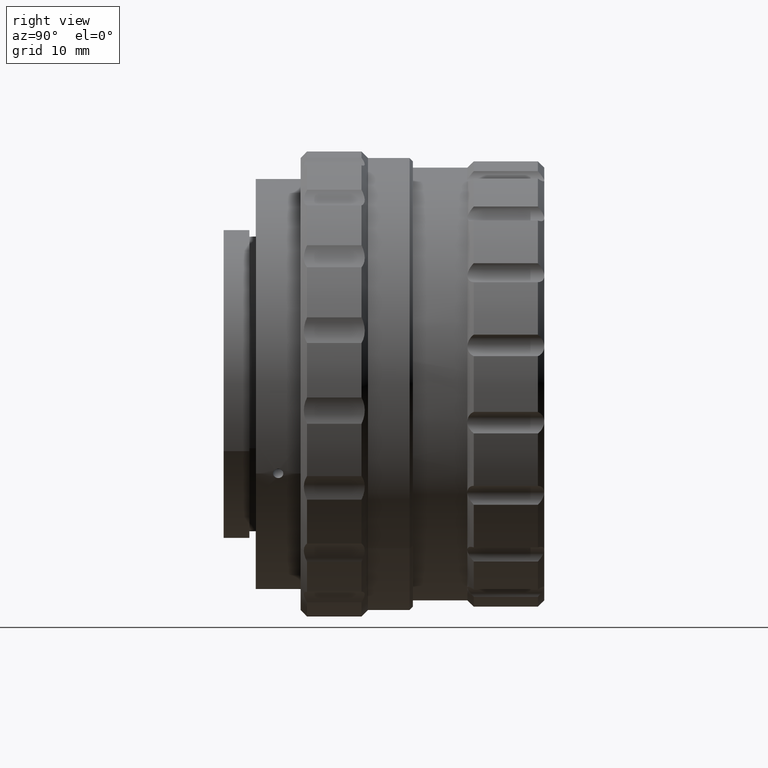
[diagram: clean part render]
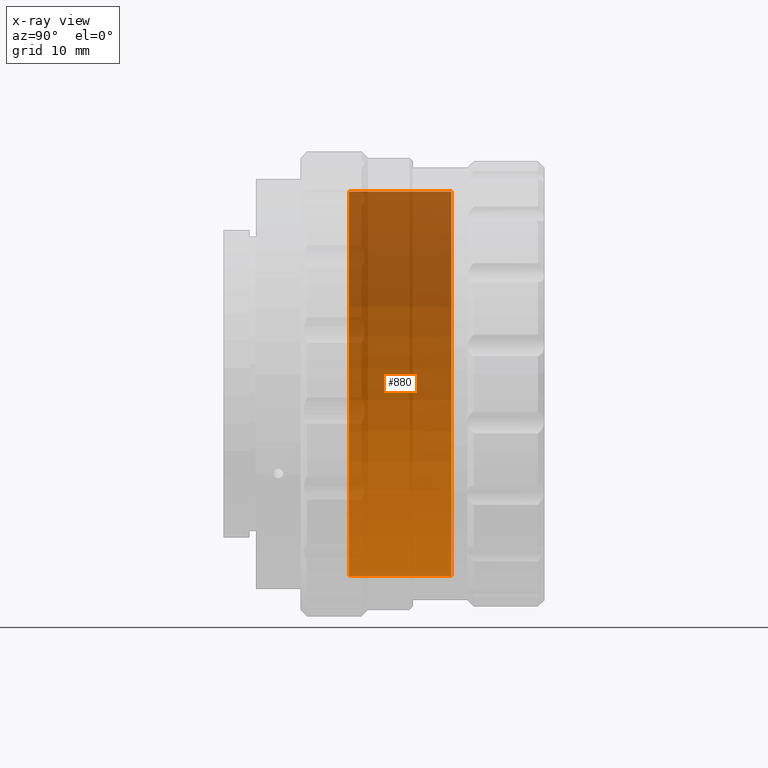
[diagram: x-ray — body ghosted, one internal face saturated and labeled with its STEP entity id]
A machine part, right view, then the same camera in x-ray: the body is ghosted and one INTERNAL B-rep face — a face not visible from any outside direction — is saturated and labeled: STEP entity #880.
In plain terms, the highlighted cylindrical surface (partial cylindrical patch) has radius 30 mm, axis along (-0, -1, -0).
Its self-contained STEP definition (entity closure, byte-faithful):
#526 = EDGE_CURVE ( 'NONE', #5051, #1820, #8237, .T. ) ;
#559 = VERTEX_POINT ( 'NONE', #1416 ) ;
#592 = VECTOR ( 'NONE', #3471, 1000.000000000000000 ) ;
#783 = CARTESIAN_POINT ( 'NONE',  ( 5.971701014312827738, -15.54875568700541955, 14.90330644533106863 ) ) ;
#870 = CARTESIAN_POINT ( 'NONE',  ( 5.971701014312827738, -15.54875568700541955, 44.90330644533106863 ) ) ;
#880 = ADVANCED_FACE ( 'NONE', ( #9099 ), #7655, .T. ) ;
#1081 = DIRECTION ( 'NONE',  ( -0.000000000000000000, -1.000000000000000000, -0.000000000000000000 ) ) ;
#1416 = CARTESIAN_POINT ( 'NONE',  ( 5.971701014312827738, 0.4512443129945815645, 14.90330644533106508 ) ) ;
#1802 = DIRECTION ( 'NONE',  ( -0.000000000000000000, -1.000000000000000000, -0.000000000000000000 ) ) ;
#1820 = VERTEX_POINT ( 'NONE', #7996 ) ;
#2336 = ORIENTED_EDGE ( 'NONE', *, *, #9692, .T. ) ;
#2932 = CARTESIAN_POINT ( 'NONE',  ( 5.971701014312831290, 0.4512443129945815645, 74.90330644533108284 ) ) ;
#3192 = ORIENTED_EDGE ( 'NONE', *, *, #526, .F. ) ;
#3471 = DIRECTION ( 'NONE',  ( -0.000000000000000000, -1.000000000000000000, -0.000000000000000000 ) ) ;
#3489 = CARTESIAN_POINT ( 'NONE',  ( 5.971701014312827738, -20.54875568700542132, 44.90330644533106863 ) ) ;
#3872 = LINE ( 'NONE', #7138, #4066 ) ;
#4024 = DIRECTION ( 'NONE',  ( -0.000000000000000000, -1.000000000000000000, -0.000000000000000000 ) ) ;
#4066 = VECTOR ( 'NONE', #10400, 1000.000000000000000 ) ;
#4140 = DIRECTION ( 'NONE',  ( 0.000000000000000000, 0.000000000000000000, -1.000000000000000000 ) ) ;
#4464 = CIRCLE ( 'NONE', #8406, 30.00000000000000000 ) ;
#4891 = DIRECTION ( 'NONE',  ( 0.000000000000000000, 0.000000000000000000, -1.000000000000000000 ) ) ;
#5044 = EDGE_LOOP ( 'NONE', ( #3192, #9457, #2336, #5744 ) ) ;
#5051 = VERTEX_POINT ( 'NONE', #2932 ) ;
#5144 = DIRECTION ( 'NONE',  ( 0.000000000000000000, 0.000000000000000000, -1.000000000000000000 ) ) ;
#5145 = CIRCLE ( 'NONE', #6684, 30.00000000000000355 ) ;
#5744 = ORIENTED_EDGE ( 'NONE', *, *, #10209, .F. ) ;
#5816 = CARTESIAN_POINT ( 'NONE',  ( 5.971701014312831290, -20.54875568700542132, 74.90330644533106863 ) ) ;
#6684 = AXIS2_PLACEMENT_3D ( 'NONE', #8104, #1802, #4891 ) ;
#7138 = CARTESIAN_POINT ( 'NONE',  ( 5.971701014312827738, -20.54875568700542132, 14.90330644533106863 ) ) ;
#7357 = VERTEX_POINT ( 'NONE', #783 ) ;
#7655 = CYLINDRICAL_SURFACE ( 'NONE', #10255, 30.00000000000000000 ) ;
#7996 = CARTESIAN_POINT ( 'NONE',  ( 5.971701014312831290, -15.54875568700541955, 74.90330644533106863 ) ) ;
#8104 = CARTESIAN_POINT ( 'NONE',  ( 5.971701014312827738, 0.4512443129945815645, 44.90330644533106863 ) ) ;
#8237 = LINE ( 'NONE', #5816, #592 ) ;
#8406 = AXIS2_PLACEMENT_3D ( 'NONE', #870, #4024, #4140 ) ;
#9099 = FACE_OUTER_BOUND ( 'NONE', #5044, .T. ) ;
#9457 = ORIENTED_EDGE ( 'NONE', *, *, #9766, .T. ) ;
#9692 = EDGE_CURVE ( 'NONE', #559, #7357, #3872, .T. ) ;
#9766 = EDGE_CURVE ( 'NONE', #5051, #559, #5145, .T. ) ;
#10209 = EDGE_CURVE ( 'NONE', #1820, #7357, #4464, .T. ) ;
#10255 = AXIS2_PLACEMENT_3D ( 'NONE', #3489, #1081, #5144 ) ;
#10400 = DIRECTION ( 'NONE',  ( -0.000000000000000000, -1.000000000000000000, -0.000000000000000000 ) ) ;